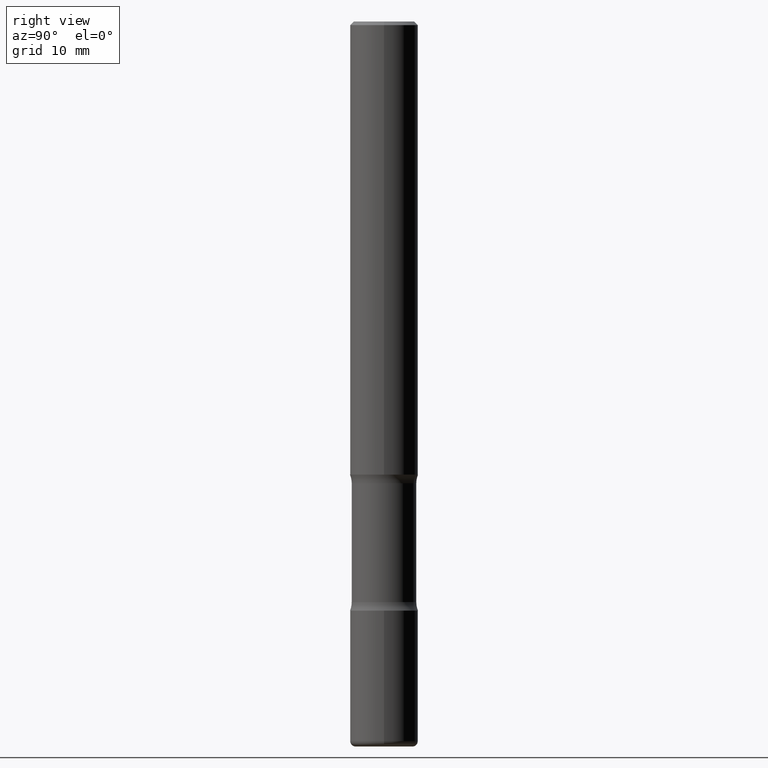
[diagram: clean part render]
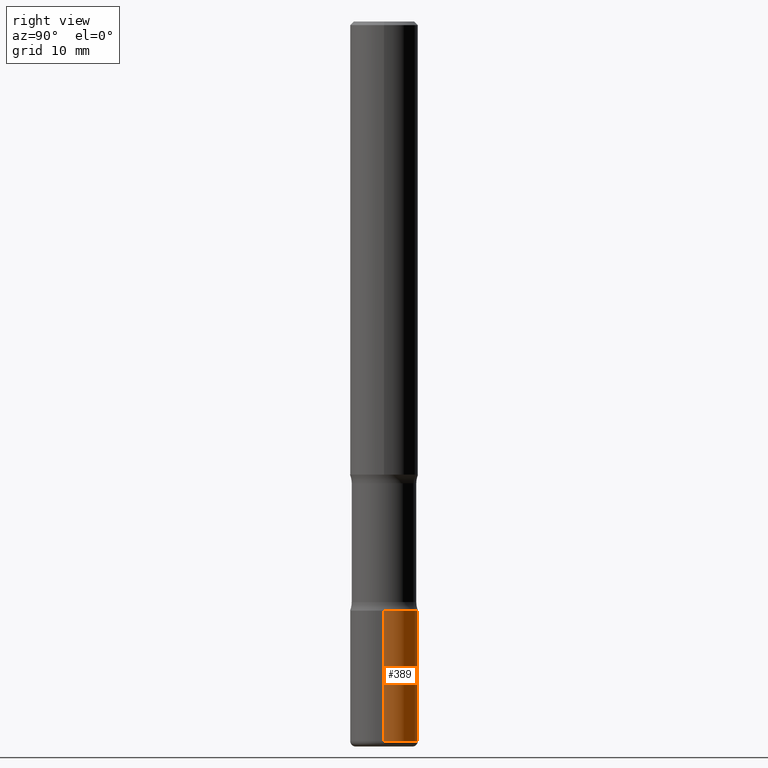
[diagram: same view with one face highlighted and labeled with its STEP entity id]
A machine part, right view. The second image highlights one B-rep face of the part: STEP entity #389.
In plain terms, the highlighted cylindrical surface (edge-blend (fillet) strip) has radius 4.7625 mm, axis along (-0, 0, 1).
Its self-contained STEP definition (entity closure, byte-faithful):
#14 = CARTESIAN_POINT ( 'NONE',  ( 0.1874999999999999722, -1.517048641727346712E-14, -3.970000000000000639 ) ) ;
#18 = FACE_OUTER_BOUND ( 'NONE', #209, .T. ) ;
#22 = ORIENTED_EDGE ( 'NONE', *, *, #240, .T. ) ;
#27 = DIRECTION ( 'NONE',  ( 1.000000000000000000, -6.982962677686269866E-15, 0.000000000000000000 ) ) ;
#36 = LINE ( 'NONE', #133, #301 ) ;
#45 = VERTEX_POINT ( 'NONE', #14 ) ;
#49 = EDGE_CURVE ( 'NONE', #200, #108, #327, .T. ) ;
#56 = DIRECTION ( 'NONE',  ( -2.445468806185136877E-29, 3.491481338843145188E-15, 1.000000000000000000 ) ) ;
#88 = EDGE_CURVE ( 'NONE', #45, #200, #36, .T. ) ;
#107 = ORIENTED_EDGE ( 'NONE', *, *, #88, .F. ) ;
#108 = VERTEX_POINT ( 'NONE', #241 ) ;
#113 = DIRECTION ( 'NONE',  ( -2.445468806185136597E-29, 3.491481338843145583E-15, 1.000000000000000000 ) ) ;
#114 = VERTEX_POINT ( 'NONE', #365 ) ;
#121 = CARTESIAN_POINT ( 'NONE',  ( 0.000000000000000000, 0.000000000000000000, 0.000000000000000000 ) ) ;
#131 = DIRECTION ( 'NONE',  ( 1.000000000000000000, -6.982962677686269077E-15, 0.000000000000000000 ) ) ;
#133 = CARTESIAN_POINT ( 'NONE',  ( 0.1875000000000001110, -1.309305502066175797E-15, 9.142831454617385217E-30 ) ) ;
#145 = CARTESIAN_POINT ( 'NONE',  ( 0.1875000000000000833, -1.265661985330640259E-14, -3.250000000000000444 ) ) ;
#200 = VERTEX_POINT ( 'NONE', #145 ) ;
#209 = EDGE_LOOP ( 'NONE', ( #505, #22, #213, #107 ) ) ;
#213 = ORIENTED_EDGE ( 'NONE', *, *, #49, .F. ) ;
#215 = DIRECTION ( 'NONE',  ( -2.445468806185136877E-29, 3.491481338843145188E-15, 1.000000000000000000 ) ) ;
#240 = EDGE_CURVE ( 'NONE', #114, #108, #504, .T. ) ;
#241 = CARTESIAN_POINT ( 'NONE',  ( -0.1875000000000000833, -1.127198000367356963E-14, -3.250000000000000444 ) ) ;
#250 = CIRCLE ( 'NONE', #454, 0.1875000000000001110 ) ;
#260 = DIRECTION ( 'NONE',  ( 1.000000000000000000, -6.982962677686266711E-15, 4.876176775795935793E-29 ) ) ;
#301 = VECTOR ( 'NONE', #215, 39.37007874015748143 ) ;
#315 = CARTESIAN_POINT ( 'NONE',  ( 9.708511160554993993E-29, -1.386118091520729054E-14, -3.970000000000000639 ) ) ;
#327 = CIRCLE ( 'NONE', #353, 0.1875000000000000833 ) ;
#353 = AXIS2_PLACEMENT_3D ( 'NONE', #444, #113, #27 ) ;
#365 = CARTESIAN_POINT ( 'NONE',  ( -0.1874999999999999722, -1.252891328565710269E-14, -3.970000000000000639 ) ) ;
#369 = CARTESIAN_POINT ( 'NONE',  ( -0.1875000000000001110, 1.332267629550188637E-15, -9.223003294227953596E-30 ) ) ;
#383 = AXIS2_PLACEMENT_3D ( 'NONE', #121, #421, #260 ) ;
#389 = ADVANCED_FACE ( 'NONE', ( #18 ), #411, .T. ) ;
#411 = CYLINDRICAL_SURFACE ( 'NONE', #383, 0.1875000000000001110 ) ;
#421 = DIRECTION ( 'NONE',  ( -2.445468806185136597E-29, 3.491481338843145583E-15, 1.000000000000000000 ) ) ;
#430 = EDGE_CURVE ( 'NONE', #45, #114, #250, .T. ) ;
#444 = CARTESIAN_POINT ( 'NONE',  ( 7.947773620101696182E-29, -1.134731435124022600E-14, -3.250000000000000444 ) ) ;
#454 = AXIS2_PLACEMENT_3D ( 'NONE', #315, #512, #131 ) ;
#504 = LINE ( 'NONE', #369, #516 ) ;
#505 = ORIENTED_EDGE ( 'NONE', *, *, #430, .T. ) ;
#512 = DIRECTION ( 'NONE',  ( -2.445468806185136597E-29, 3.491481338843145583E-15, 1.000000000000000000 ) ) ;
#516 = VECTOR ( 'NONE', #56, 39.37007874015748143 ) ;